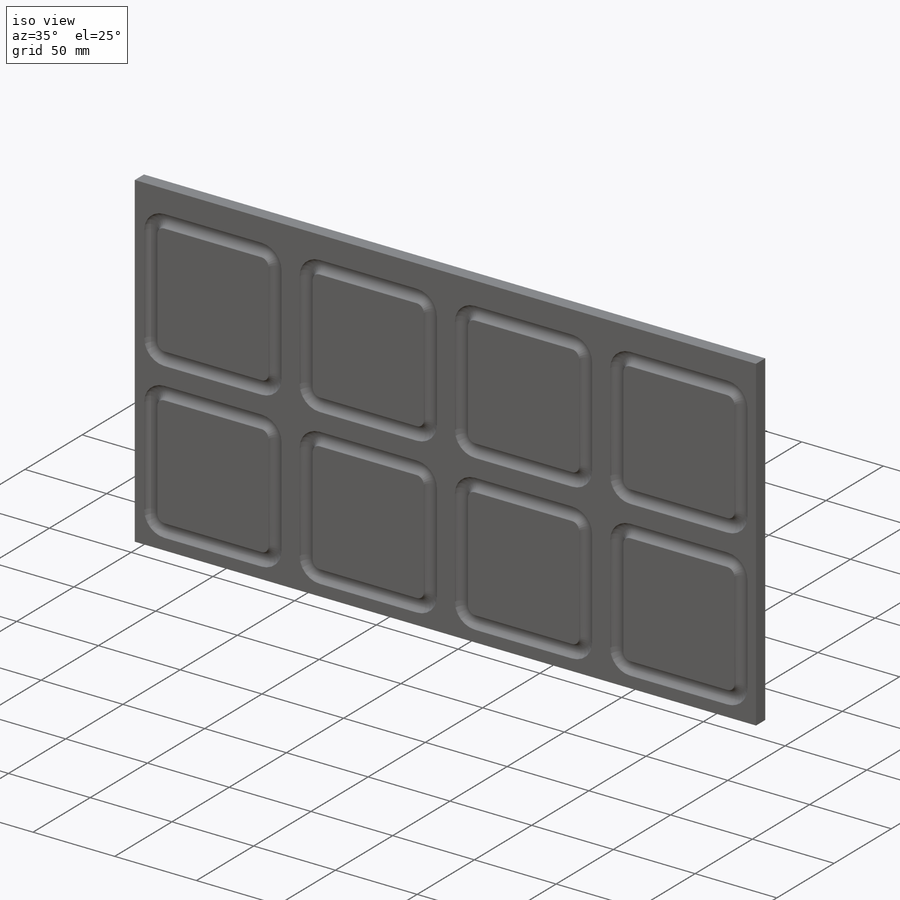
[diagram: iso view]
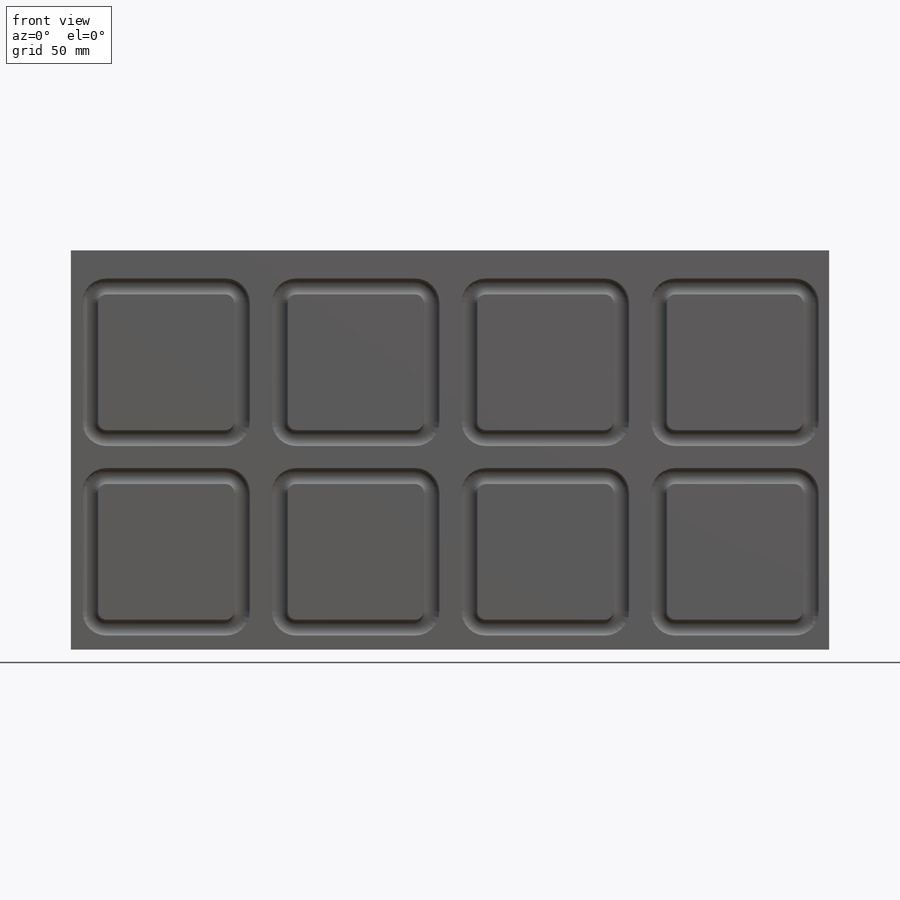
[diagram: front view]
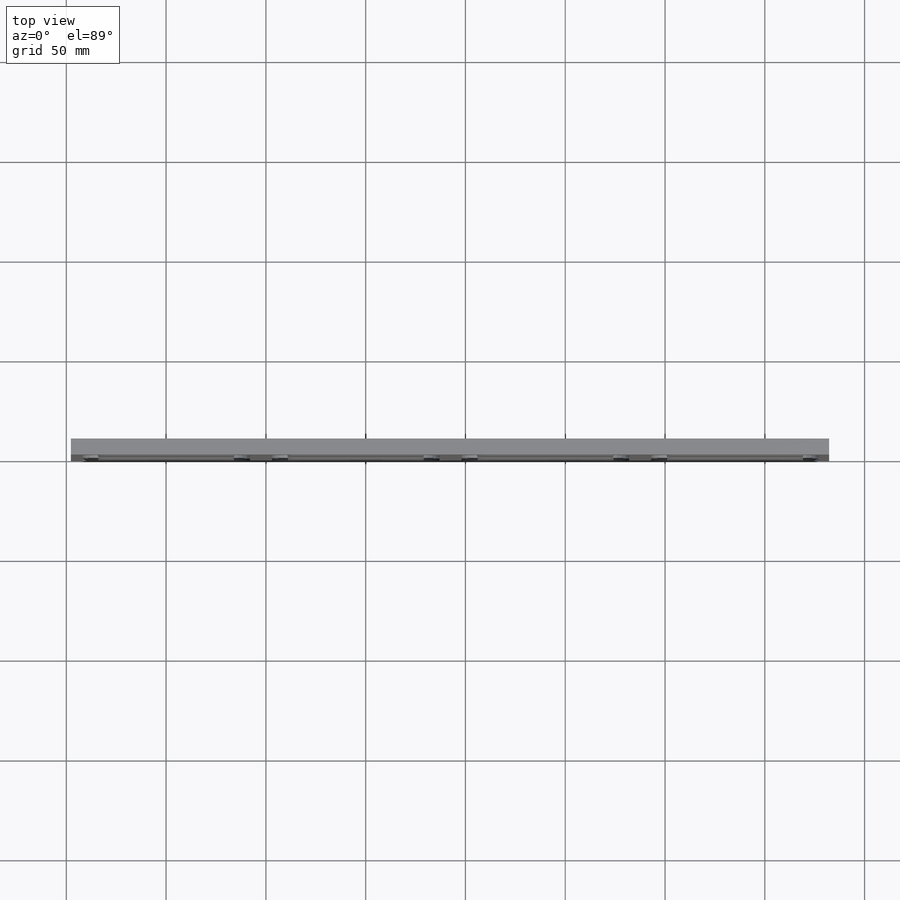
[diagram: top view]
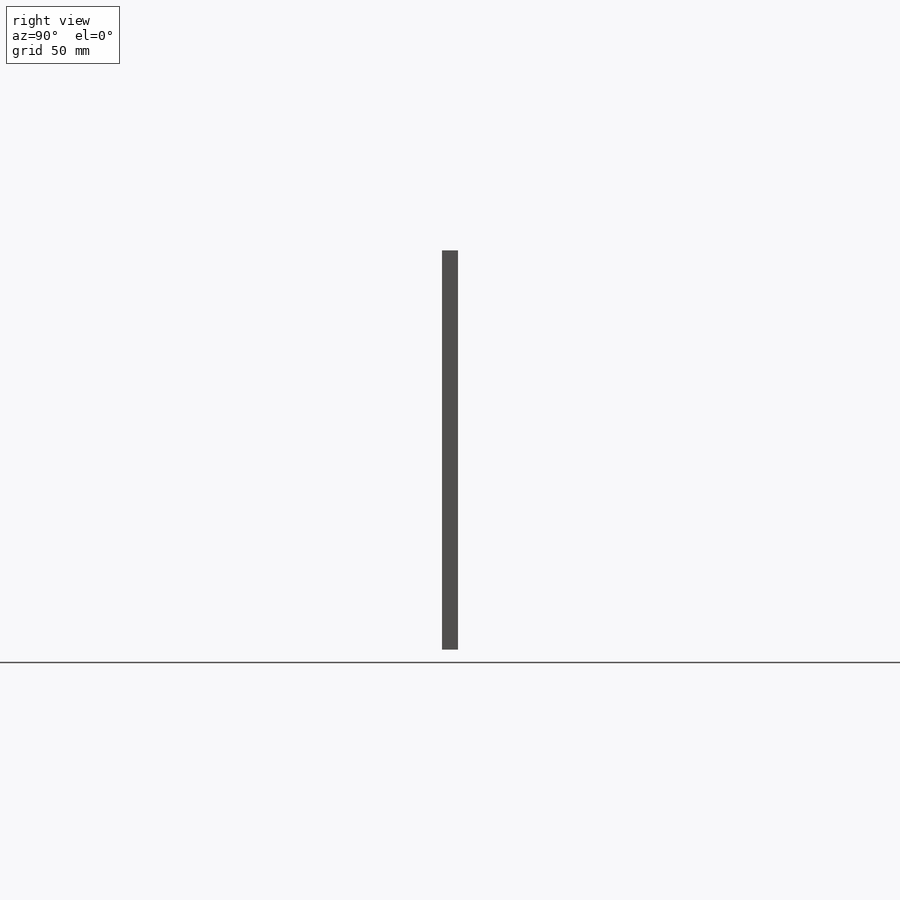
[diagram: right view]
SOLIDWORKS PART (.sldprt)
format: sldprt  version: not decoded by parser v0  size: 285,184 bytes
history: native  units: mm
features: sketch x3, material x1, extrude x1, sweep x1, pattern_linear x1 (+12 scaffold rows collapsed)
feature tree (19):
  scaffold x12  (default folders/planes/origin — collapsed)
  material  "Material <not specified>"
  sketch  "Sketch1"  dims[c1.D5=5.0mm c1.D3=8.2mm c1.D1=70.0mm c1.D2=70.0mm c2.D3=76.0mm c2.D4=76.0mm c2.D1=76.0mm c2.D2=76.0mm]
  sketch  "Sketch3"  dims[D1=200.0mm D2=380.0mm]
  extrude  "Boss-Extrude1"  Depth=8mm
  sketch  "Sketch6"  dims[D1=5.0mm]
  sweep  "Cut-Sweep11"
  pattern_linear  "LPattern1"  Count1=4 Count2=2 Spacing1=95mm Spacing2=95mm
decode coverage: 5 of 6 modeling features carry decoded parameters
note: suppression state not decoded; provenance and decode notes live in map.json
